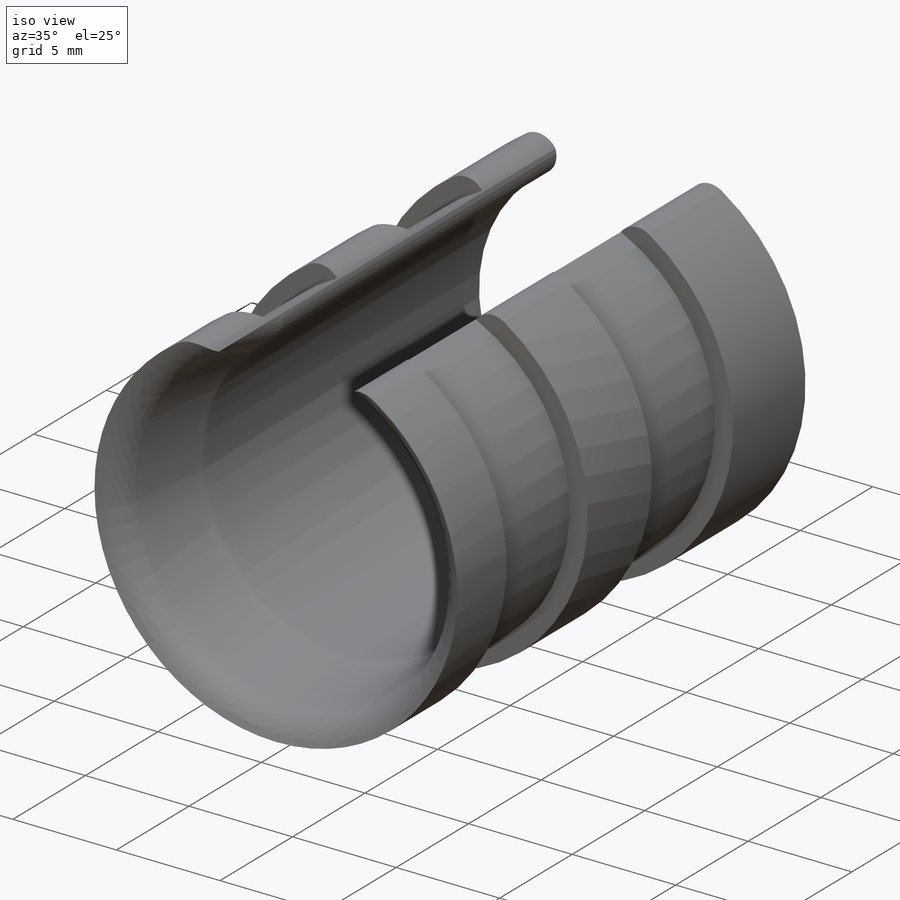
[diagram: iso view]
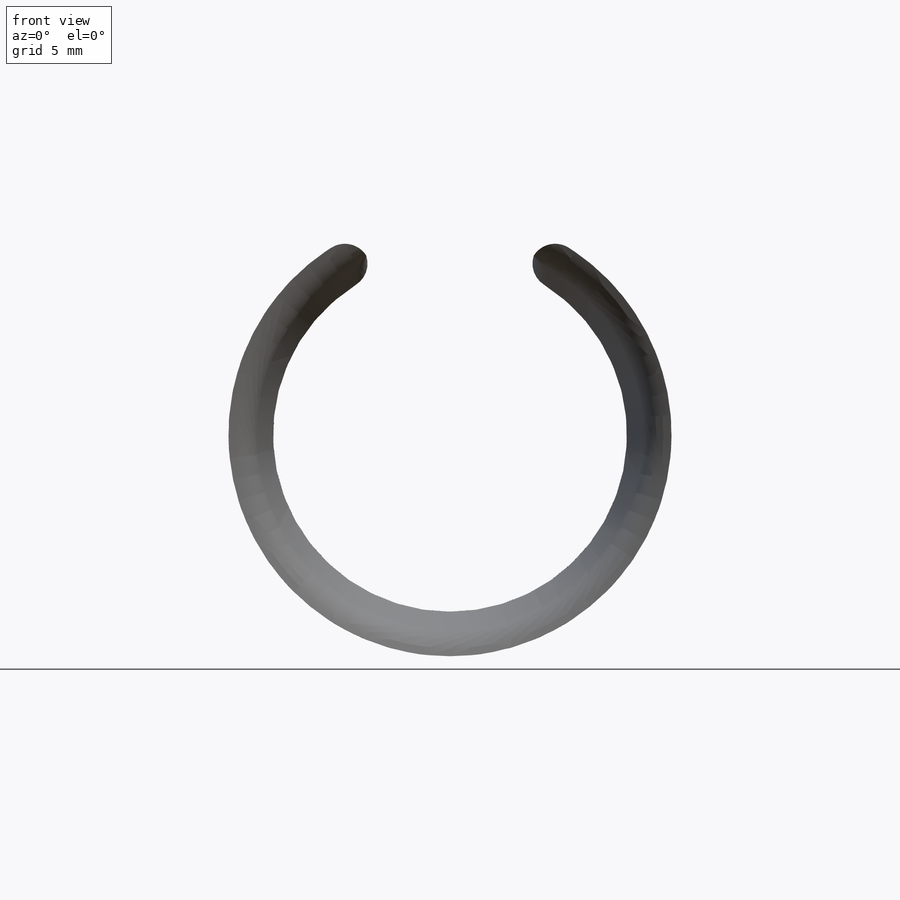
[diagram: front view]
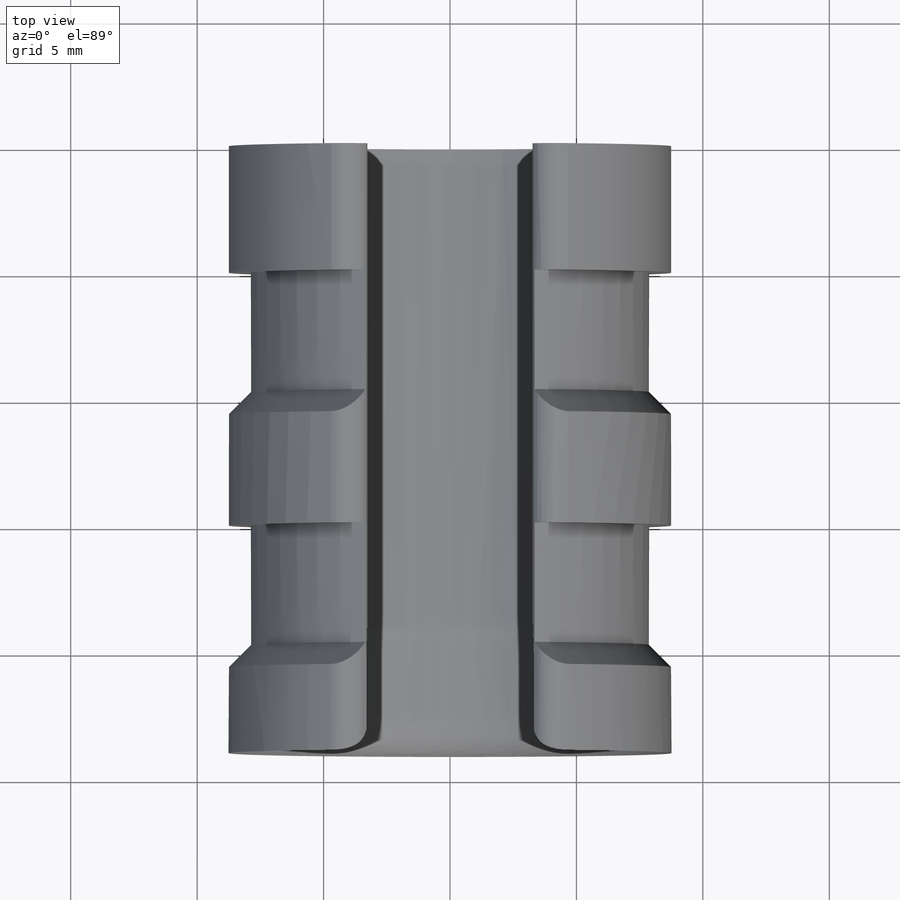
[diagram: top view]
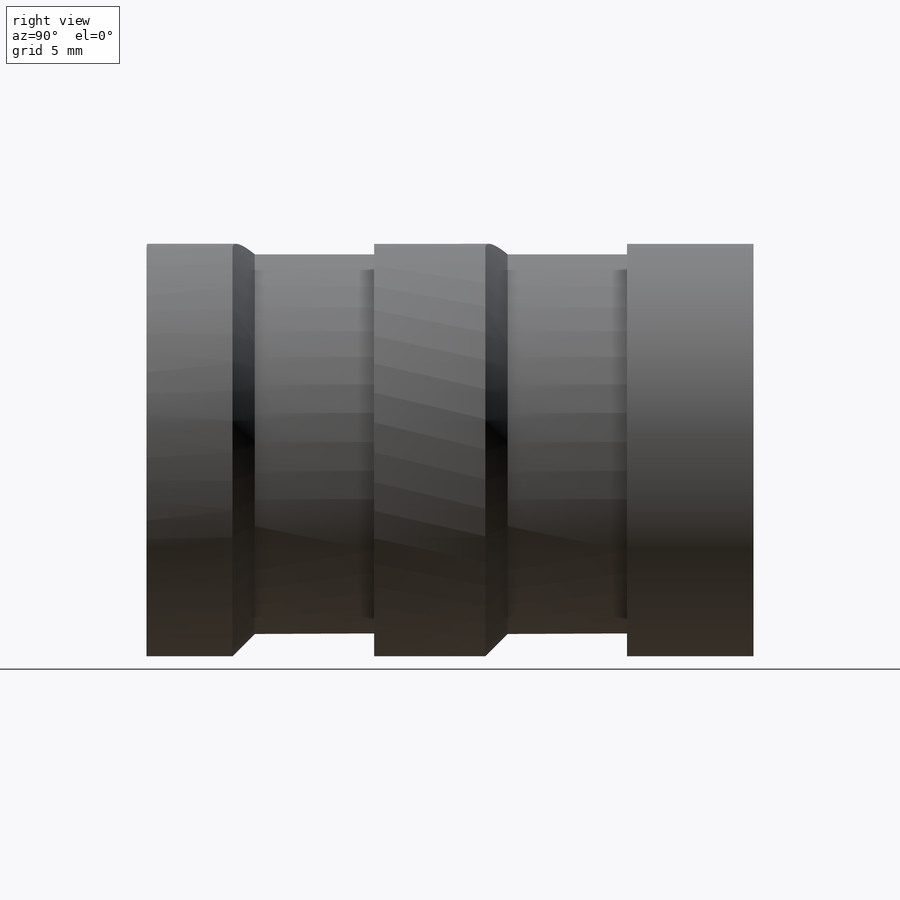
[diagram: right view]
SOLIDWORKS PART (.sldprt)
format: sldprt  version: not decoded by parser v0  size: 694,784 bytes
history: native  units: mm
features: sketch x3, fillet x3, chamfer x2, material x1, extrude x1, cut_revolve x1, cut_extrude x1 (+11 scaffold rows collapsed)
feature tree (23):
  scaffold x11  (default folders/planes/origin — collapsed)
  material  "Material <not specified>"
  sketch  "Sketch1"  dims[D1=1.76mm]
  extrude  "Boss-Extrude1"  Depth=24mm
  sketch  "Sketch2"  dims[c1.D1=3.2mm c1.D3=1.76mm c2.D1=7.0mm c2.D2=7.0mm]
  cut_revolve  "Cut-Revolve1"  Angle=360deg
  chamfer  "Chamfer1"  Distance=1.6mm Angle=45deg
  sketch  "Sketch3"  dims[c1.D1=~11.10494mm c2.D1=25.0deg c2.D2=~8.46151mm c3.D2=25.0deg]
  cut_extrude  "Cut-Extrude1"  [1 undecoded]
  fillet  "Fillet1"  Radius=1mm
  chamfer  "Chamfer2"  Distance=5mm Angle=10deg
  fillet  "Fillet2"  Radius=1.6mm
  fillet  "Fillet4"  Radius=1mm
decode coverage: 10 of 11 modeling features carry decoded parameters
note: ~ marks probable driven/reference dimensions
note: 1 parameter value undecoded
note: suppression state not decoded; provenance and decode notes live in map.json
